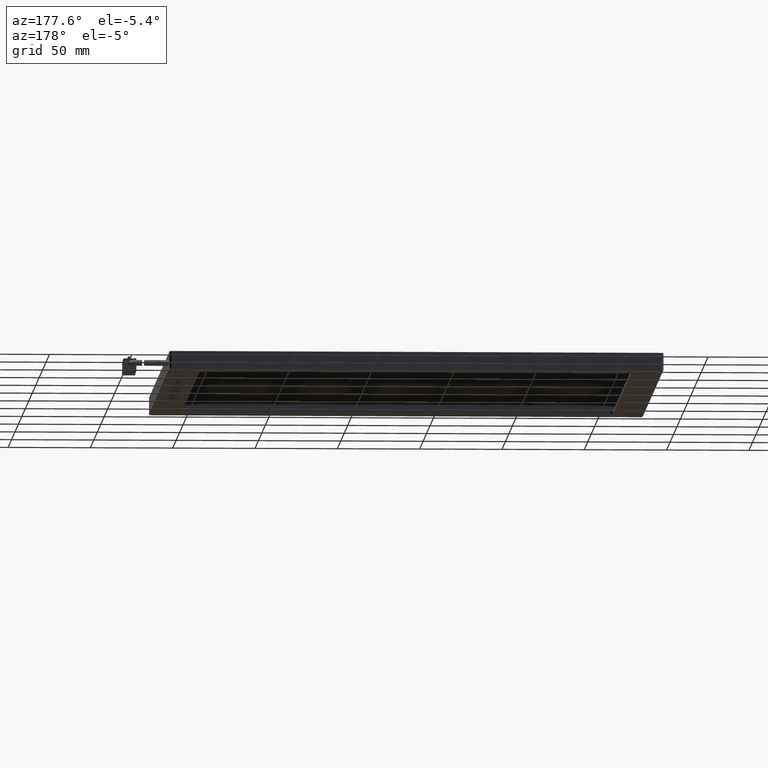
[diagram: clean part render]
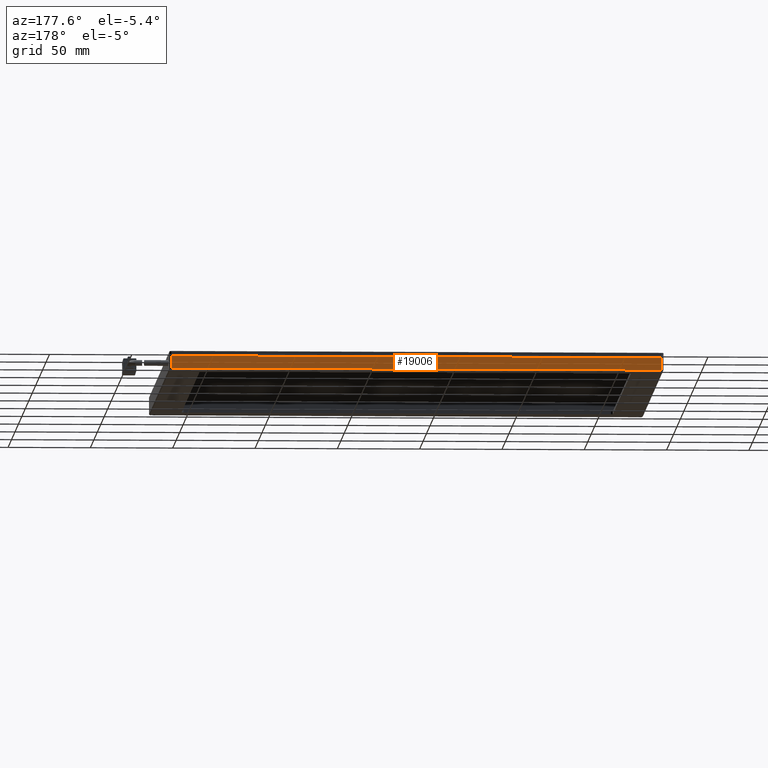
[diagram: same view with one face highlighted and labeled with its STEP entity id]
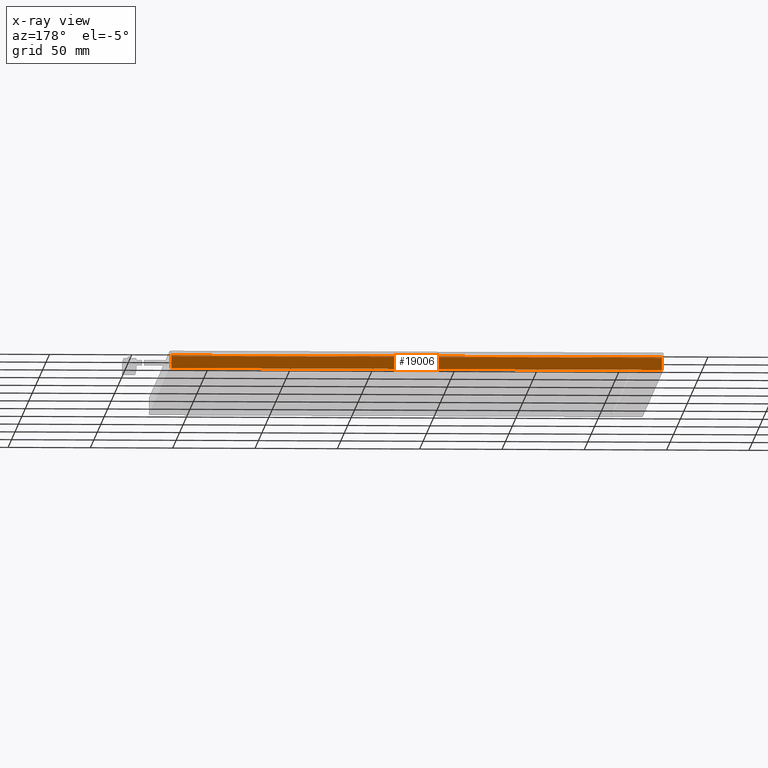
[diagram: x-ray of the same camera — body ghosted, the highlighted face saturated]
A machine part, auxiliary view. The second image highlights one B-rep face of the part: STEP entity #19006.
The next image is the same camera in x-ray: the body ghosted, the highlighted face saturated — about 0% of this face is hidden behind the body in this view.
In plain terms, the highlighted planar face has unit normal (0, -1, 0).
Its self-contained STEP definition (entity closure, byte-faithful):
#182 = LINE ( 'NONE', #16626, #4072 ) ;
#391 = EDGE_CURVE ( 'NONE', #18227, #1519, #7133, .T. ) ;
#585 = VECTOR ( 'NONE', #7463, 1000.000000000000000 ) ;
#1466 = DIRECTION ( 'NONE',  ( 0.0000000000000000000, -1.000000000000000000, 0.0000000000000000000 ) ) ;
#1519 = VERTEX_POINT ( 'NONE', #16146 ) ;
#1775 = CARTESIAN_POINT ( 'NONE',  ( -178.7273477157360400, 189.4538071065989300, 4.999999999999931600 ) ) ;
#1842 = ORIENTED_EDGE ( 'NONE', *, *, #9857, .T. ) ;
#4072 = VECTOR ( 'NONE', #18153, 1000.000000000000000 ) ;
#4688 = VECTOR ( 'NONE', #13455, 1000.000000000000000 ) ;
#6012 = CARTESIAN_POINT ( 'NONE',  ( 119.2726522842639600, 189.4538071065989300, 4.999999999999931600 ) ) ;
#7133 = LINE ( 'NONE', #17929, #14963 ) ;
#7463 = DIRECTION ( 'NONE',  ( -0.0000000000000000000, 0.0000000000000000000, 1.000000000000000000 ) ) ;
#7517 = DIRECTION ( 'NONE',  ( 1.000000000000000000, -0.0000000000000000000, 0.0000000000000000000 ) ) ;
#7902 = LINE ( 'NONE', #6012, #585 ) ;
#8114 = EDGE_LOOP ( 'NONE', ( #13507, #18094, #1842, #13573 ) ) ;
#8803 = EDGE_CURVE ( 'NONE', #1519, #13422, #7902, .T. ) ;
#9857 = EDGE_CURVE ( 'NONE', #10653, #13422, #182, .T. ) ;
#10230 = CARTESIAN_POINT ( 'NONE',  ( -179.7273477157360400, 189.4538071065989300, 4.999999999999931600 ) ) ;
#10653 = VERTEX_POINT ( 'NONE', #15107 ) ;
#10845 = AXIS2_PLACEMENT_3D ( 'NONE', #10230, #1466, #11737 ) ;
#11393 = CARTESIAN_POINT ( 'NONE',  ( 119.2726522842639000, 189.4538071065989900, 4.999999999999931600 ) ) ;
#11737 = DIRECTION ( 'NONE',  ( 0.0000000000000000000, -0.0000000000000000000, -1.000000000000000000 ) ) ;
#13422 = VERTEX_POINT ( 'NONE', #11393 ) ;
#13455 = DIRECTION ( 'NONE',  ( 0.0000000000000000000, -0.0000000000000000000, -1.000000000000000000 ) ) ;
#13507 = ORIENTED_EDGE ( 'NONE', *, *, #391, .F. ) ;
#13573 = ORIENTED_EDGE ( 'NONE', *, *, #8803, .F. ) ;
#14022 = CARTESIAN_POINT ( 'NONE',  ( -178.7273477157360400, 189.4538071065989300, -2.500000000000076800 ) ) ;
#14963 = VECTOR ( 'NONE', #7517, 1000.000000000000000 ) ;
#15057 = EDGE_CURVE ( 'NONE', #10653, #18227, #15967, .T. ) ;
#15107 = CARTESIAN_POINT ( 'NONE',  ( -178.7273477157360400, 189.4538071065989300, 4.999999999999931600 ) ) ;
#15967 = LINE ( 'NONE', #1775, #4688 ) ;
#16146 = CARTESIAN_POINT ( 'NONE',  ( 119.2726522842639600, 189.4538071065989900, -2.500000000000066600 ) ) ;
#16626 = CARTESIAN_POINT ( 'NONE',  ( -179.7273477157360400, 189.4538071065989300, 4.999999999999931600 ) ) ;
#17300 = FACE_OUTER_BOUND ( 'NONE', #8114, .T. ) ;
#17929 = CARTESIAN_POINT ( 'NONE',  ( -179.7273477157360400, 189.4538071065989300, -2.500000000000067900 ) ) ;
#18094 = ORIENTED_EDGE ( 'NONE', *, *, #15057, .F. ) ;
#18153 = DIRECTION ( 'NONE',  ( 1.000000000000000000, -0.0000000000000000000, 0.0000000000000000000 ) ) ;
#18227 = VERTEX_POINT ( 'NONE', #14022 ) ;
#18969 = PLANE ( 'NONE',  #10845 ) ;
#19006 = ADVANCED_FACE ( 'NONE', ( #17300 ), #18969, .F. ) ;